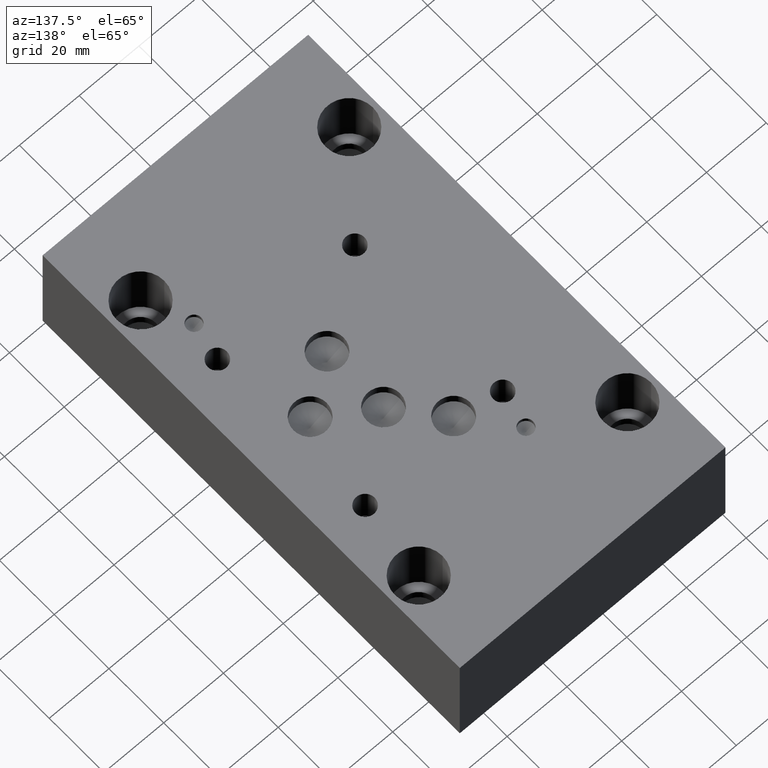
[diagram: clean part render]
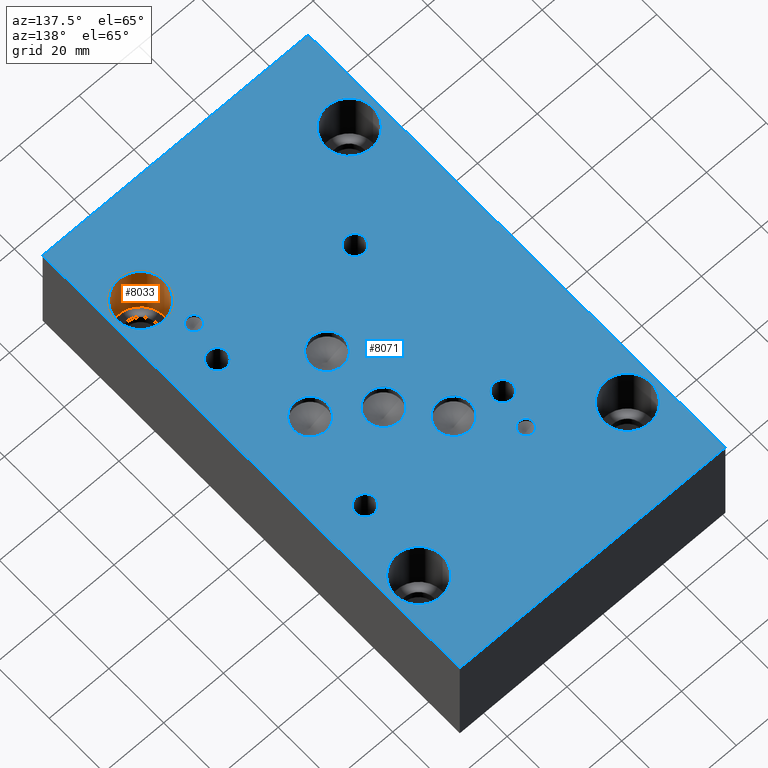
[diagram: same view with the hole feature highlighted: cylindrical wall and planar end face, labeled with their STEP entity ids]
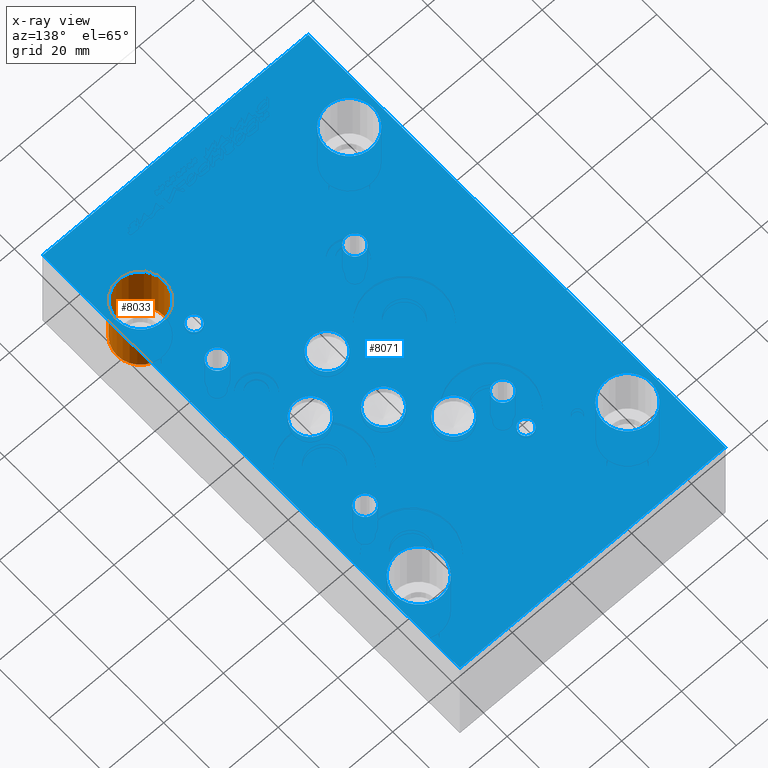
[diagram: x-ray of the same camera — body ghosted, the hole faces saturated]
A machine part, auxiliary view. The highlighted faces form one hole feature of diameter 15.875 mm: the cylindrical wall (entity #8033, orange) and its adjacent planar end face (entity #8071, blue) — they share a circular edge in the B-rep.
The next image is the same camera in x-ray (body ghosted, the hole faces saturated) — the bore reads through the body.
Wall:
#36=CYLINDRICAL_SURFACE('',#8466,7.9375);
#136=CIRCLE('',#8463,7.9375);
#137=CIRCLE('',#8464,7.9375);
#139=CIRCLE('',#8467,7.9375);
#140=CIRCLE('',#8468,7.9375);
#891=FACE_OUTER_BOUND('',#1340,.T.);
#1340=EDGE_LOOP('',(#6847,#6848,#6849,#6850,#6851,#6852));
#2178=LINE('',#13373,#2982);
#2982=VECTOR('',#10100,7.9375);
#3704=VERTEX_POINT('',#13362);
#3705=VERTEX_POINT('',#13363);
#3707=VERTEX_POINT('',#13369);
#3708=VERTEX_POINT('',#13370);
#4782=EDGE_CURVE('',#3704,#3705,#136,.T.);
#4783=EDGE_CURVE('',#3705,#3704,#137,.T.);
#4785=EDGE_CURVE('',#3707,#3708,#139,.T.);
#4786=EDGE_CURVE('',#3708,#3707,#140,.T.);
#4787=EDGE_CURVE('',#3708,#3705,#2178,.T.);
#6847=ORIENTED_EDGE('',*,*,#4785,.F.);
#6848=ORIENTED_EDGE('',*,*,#4786,.F.);
#6849=ORIENTED_EDGE('',*,*,#4787,.T.);
#6850=ORIENTED_EDGE('',*,*,#4782,.F.);
#6851=ORIENTED_EDGE('',*,*,#4783,.F.);
#6852=ORIENTED_EDGE('',*,*,#4787,.F.);
#8033=ADVANCED_FACE('',(#891),#36,.F.);
#8463=AXIS2_PLACEMENT_3D('',#13364,#10088,#10089);
#8464=AXIS2_PLACEMENT_3D('',#13365,#10090,#10091);
#8466=AXIS2_PLACEMENT_3D('',#13368,#10094,#10095);
#8467=AXIS2_PLACEMENT_3D('',#13371,#10096,#10097);
#8468=AXIS2_PLACEMENT_3D('',#13372,#10098,#10099);
#10088=DIRECTION('center_axis',(0.,0.,1.));
#10089=DIRECTION('ref_axis',(1.,0.,0.));
#10090=DIRECTION('center_axis',(0.,0.,1.));
#10091=DIRECTION('ref_axis',(1.,0.,0.));
#10094=DIRECTION('center_axis',(0.,0.,1.));
#10095=DIRECTION('ref_axis',(1.,0.,0.));
#10096=DIRECTION('center_axis',(0.,0.,-1.));
#10097=DIRECTION('ref_axis',(1.,0.,0.));
#10098=DIRECTION('center_axis',(0.,0.,-1.));
#10099=DIRECTION('ref_axis',(1.,0.,0.));
#10100=DIRECTION('',(0.,0.,-1.));
#13362=CARTESIAN_POINT('',(87.3125,25.4,17.4752));
#13363=CARTESIAN_POINT('',(71.4375,25.4,17.4752));
#13364=CARTESIAN_POINT('Origin',(79.375,25.4,17.4752));
#13365=CARTESIAN_POINT('Origin',(79.375,25.4,17.4752));
#13368=CARTESIAN_POINT('Origin',(79.375,25.4,27.7876));
#13369=CARTESIAN_POINT('',(87.3125,25.4,38.1));
#13370=CARTESIAN_POINT('',(71.4375,25.4,38.1));
#13371=CARTESIAN_POINT('Origin',(79.375,25.4,38.1));
#13372=CARTESIAN_POINT('Origin',(79.375,25.4,38.1));
#13373=CARTESIAN_POINT('',(71.4375,25.4,27.7876));
End face:
#125=CIRCLE('',#8445,7.9375);
#126=CIRCLE('',#8446,7.9375);
#132=CIRCLE('',#8456,7.9375);
#133=CIRCLE('',#8457,7.9375);
#139=CIRCLE('',#8467,7.9375);
#140=CIRCLE('',#8468,7.9375);
#146=CIRCLE('',#8478,7.9375);
#147=CIRCLE('',#8479,7.9375);
#150=CIRCLE('',#8485,2.3876);
#151=CIRCLE('',#8486,2.3876);
#154=CIRCLE('',#8491,2.3876);
#155=CIRCLE('',#8492,2.3876);
#158=CIRCLE('',#8497,5.55625);
#159=CIRCLE('',#8498,5.55625);
#162=CIRCLE('',#8503,5.55625);
#163=CIRCLE('',#8504,5.55625);
#166=CIRCLE('',#8509,5.55625);
#167=CIRCLE('',#8510,5.55625);
#170=CIRCLE('',#8515,5.5626);
#171=CIRCLE('',#8516,5.5626);
#177=CIRCLE('',#8525,3.175);
#178=CIRCLE('',#8526,3.175);
#184=CIRCLE('',#8536,3.175);
#185=CIRCLE('',#8537,3.175);
#191=CIRCLE('',#8547,3.175);
#192=CIRCLE('',#8548,3.175);
#198=CIRCLE('',#8558,3.175);
#199=CIRCLE('',#8559,3.175);
#271=FACE_BOUND('',#1384,.T.);
#272=FACE_BOUND('',#1385,.T.);
#273=FACE_BOUND('',#1386,.T.);
#274=FACE_BOUND('',#1387,.T.);
#275=FACE_BOUND('',#1388,.T.);
#276=FACE_BOUND('',#1389,.T.);
#277=FACE_BOUND('',#1390,.T.);
#278=FACE_BOUND('',#1391,.T.);
#279=FACE_BOUND('',#1392,.T.);
#280=FACE_BOUND('',#1393,.T.);
#281=FACE_BOUND('',#1394,.T.);
#282=FACE_BOUND('',#1395,.T.);
#283=FACE_BOUND('',#1396,.T.);
#284=FACE_BOUND('',#1397,.T.);
#929=FACE_OUTER_BOUND('',#1383,.T.);
#1383=EDGE_LOOP('',(#7023,#7024,#7025,#7026));
#1384=EDGE_LOOP('',(#7027,#7028));
#1385=EDGE_LOOP('',(#7029,#7030));
#1386=EDGE_LOOP('',(#7031,#7032));
#1387=EDGE_LOOP('',(#7033,#7034));
#1388=EDGE_LOOP('',(#7035,#7036));
#1389=EDGE_LOOP('',(#7037,#7038));
#1390=EDGE_LOOP('',(#7039,#7040));
#1391=EDGE_LOOP('',(#7041,#7042));
#1392=EDGE_LOOP('',(#7043,#7044));
#1393=EDGE_LOOP('',(#7045,#7046));
#1394=EDGE_LOOP('',(#7047,#7048));
#1395=EDGE_LOOP('',(#7049,#7050));
#1396=EDGE_LOOP('',(#7051,#7052));
#1397=EDGE_LOOP('',(#7053,#7054));
#1762=LINE('',#12189,#2566);
#2208=LINE('',#13568,#3012);
#2211=LINE('',#13574,#3015);
#2214=LINE('',#13578,#3018);
#2566=VECTOR('',#9132,10.);
#3012=VECTOR('',#10316,10.);
#3015=VECTOR('',#10321,10.);
#3018=VECTOR('',#10326,10.);
#3343=VERTEX_POINT('',#12186);
#3344=VERTEX_POINT('',#12188);
#3691=VERTEX_POINT('',#13325);
#3692=VERTEX_POINT('',#13326);
#3699=VERTEX_POINT('',#13347);
#3700=VERTEX_POINT('',#13348);
#3707=VERTEX_POINT('',#13369);
#3708=VERTEX_POINT('',#13370);
#3715=VERTEX_POINT('',#13391);
#3716=VERTEX_POINT('',#13392);
#3720=VERTEX_POINT('',#13406);
#3721=VERTEX_POINT('',#13407);
#3725=VERTEX_POINT('',#13419);
#3726=VERTEX_POINT('',#13420);
#3730=VERTEX_POINT('',#13432);
#3731=VERTEX_POINT('',#13433);
#3735=VERTEX_POINT('',#13445);
#3736=VERTEX_POINT('',#13446);
#3740=VERTEX_POINT('',#13458);
#3741=VERTEX_POINT('',#13459);
#3745=VERTEX_POINT('',#13471);
#3746=VERTEX_POINT('',#13472);
#3753=VERTEX_POINT('',#13491);
#3754=VERTEX_POINT('',#13492);
#3761=VERTEX_POINT('',#13513);
#3762=VERTEX_POINT('',#13514);
#3769=VERTEX_POINT('',#13535);
#3770=VERTEX_POINT('',#13536);
#3777=VERTEX_POINT('',#13557);
#3778=VERTEX_POINT('',#13558);
#3780=VERTEX_POINT('',#13567);
#3782=VERTEX_POINT('',#13573);
#4268=EDGE_CURVE('',#3344,#3343,#1762,.T.);
#4765=EDGE_CURVE('',#3691,#3692,#125,.T.);
#4766=EDGE_CURVE('',#3692,#3691,#126,.T.);
#4775=EDGE_CURVE('',#3699,#3700,#132,.T.);
#4776=EDGE_CURVE('',#3700,#3699,#133,.T.);
#4785=EDGE_CURVE('',#3707,#3708,#139,.T.);
#4786=EDGE_CURVE('',#3708,#3707,#140,.T.);
#4795=EDGE_CURVE('',#3715,#3716,#146,.T.);
#4796=EDGE_CURVE('',#3716,#3715,#147,.T.);
#4802=EDGE_CURVE('',#3720,#3721,#150,.T.);
#4803=EDGE_CURVE('',#3721,#3720,#151,.T.);
#4808=EDGE_CURVE('',#3725,#3726,#154,.T.);
#4809=EDGE_CURVE('',#3726,#3725,#155,.T.);
#4814=EDGE_CURVE('',#3730,#3731,#158,.T.);
#4815=EDGE_CURVE('',#3731,#3730,#159,.T.);
#4820=EDGE_CURVE('',#3735,#3736,#162,.T.);
#4821=EDGE_CURVE('',#3736,#3735,#163,.T.);
#4826=EDGE_CURVE('',#3740,#3741,#166,.T.);
#4827=EDGE_CURVE('',#3741,#3740,#167,.T.);
#4832=EDGE_CURVE('',#3745,#3746,#170,.T.);
#4833=EDGE_CURVE('',#3746,#3745,#171,.T.);
#4841=EDGE_CURVE('',#3753,#3754,#177,.T.);
#4842=EDGE_CURVE('',#3754,#3753,#178,.T.);
#4851=EDGE_CURVE('',#3761,#3762,#184,.T.);
#4852=EDGE_CURVE('',#3762,#3761,#185,.T.);
#4861=EDGE_CURVE('',#3769,#3770,#191,.T.);
#4862=EDGE_CURVE('',#3770,#3769,#192,.T.);
#4871=EDGE_CURVE('',#3777,#3778,#198,.T.);
#4872=EDGE_CURVE('',#3778,#3777,#199,.T.);
#4876=EDGE_CURVE('',#3780,#3344,#2208,.T.);
#4879=EDGE_CURVE('',#3782,#3780,#2211,.T.);
#4882=EDGE_CURVE('',#3343,#3782,#2214,.T.);
#7023=ORIENTED_EDGE('',*,*,#4268,.T.);
#7024=ORIENTED_EDGE('',*,*,#4882,.T.);
#7025=ORIENTED_EDGE('',*,*,#4879,.T.);
#7026=ORIENTED_EDGE('',*,*,#4876,.T.);
#7027=ORIENTED_EDGE('',*,*,#4765,.T.);
#7028=ORIENTED_EDGE('',*,*,#4766,.T.);
#7029=ORIENTED_EDGE('',*,*,#4775,.T.);
#7030=ORIENTED_EDGE('',*,*,#4776,.T.);
#7031=ORIENTED_EDGE('',*,*,#4785,.T.);
#7032=ORIENTED_EDGE('',*,*,#4786,.T.);
#7033=ORIENTED_EDGE('',*,*,#4795,.T.);
#7034=ORIENTED_EDGE('',*,*,#4796,.T.);
#7035=ORIENTED_EDGE('',*,*,#4802,.T.);
#7036=ORIENTED_EDGE('',*,*,#4803,.T.);
#7037=ORIENTED_EDGE('',*,*,#4808,.T.);
#7038=ORIENTED_EDGE('',*,*,#4809,.T.);
#7039=ORIENTED_EDGE('',*,*,#4814,.T.);
#7040=ORIENTED_EDGE('',*,*,#4815,.T.);
#7041=ORIENTED_EDGE('',*,*,#4820,.T.);
#7042=ORIENTED_EDGE('',*,*,#4821,.T.);
#7043=ORIENTED_EDGE('',*,*,#4826,.T.);
#7044=ORIENTED_EDGE('',*,*,#4827,.T.);
#7045=ORIENTED_EDGE('',*,*,#4832,.T.);
#7046=ORIENTED_EDGE('',*,*,#4833,.T.);
#7047=ORIENTED_EDGE('',*,*,#4841,.T.);
#7048=ORIENTED_EDGE('',*,*,#4842,.T.);
#7049=ORIENTED_EDGE('',*,*,#4851,.T.);
#7050=ORIENTED_EDGE('',*,*,#4852,.T.);
#7051=ORIENTED_EDGE('',*,*,#4861,.T.);
#7052=ORIENTED_EDGE('',*,*,#4862,.T.);
#7053=ORIENTED_EDGE('',*,*,#4871,.T.);
#7054=ORIENTED_EDGE('',*,*,#4872,.T.);
#7349=PLANE('',#8565);
#8071=ADVANCED_FACE('',(#929,#271,#272,#273,#274,#275,#276,#277,#278,#279,
#280,#281,#282,#283,#284),#7349,.T.);
#8445=AXIS2_PLACEMENT_3D('',#13327,#10046,#10047);
#8446=AXIS2_PLACEMENT_3D('',#13328,#10048,#10049);
#8456=AXIS2_PLACEMENT_3D('',#13349,#10071,#10072);
#8457=AXIS2_PLACEMENT_3D('',#13350,#10073,#10074);
#8467=AXIS2_PLACEMENT_3D('',#13371,#10096,#10097);
#8468=AXIS2_PLACEMENT_3D('',#13372,#10098,#10099);
#8478=AXIS2_PLACEMENT_3D('',#13393,#10121,#10122);
#8479=AXIS2_PLACEMENT_3D('',#13394,#10123,#10124);
#8485=AXIS2_PLACEMENT_3D('',#13408,#10138,#10139);
#8486=AXIS2_PLACEMENT_3D('',#13409,#10140,#10141);
#8491=AXIS2_PLACEMENT_3D('',#13421,#10152,#10153);
#8492=AXIS2_PLACEMENT_3D('',#13422,#10154,#10155);
#8497=AXIS2_PLACEMENT_3D('',#13434,#10166,#10167);
#8498=AXIS2_PLACEMENT_3D('',#13435,#10168,#10169);
#8503=AXIS2_PLACEMENT_3D('',#13447,#10180,#10181);
#8504=AXIS2_PLACEMENT_3D('',#13448,#10182,#10183);
#8509=AXIS2_PLACEMENT_3D('',#13460,#10194,#10195);
#8510=AXIS2_PLACEMENT_3D('',#13461,#10196,#10197);
#8515=AXIS2_PLACEMENT_3D('',#13473,#10208,#10209);
#8516=AXIS2_PLACEMENT_3D('',#13474,#10210,#10211);
#8525=AXIS2_PLACEMENT_3D('',#13493,#10230,#10231);
#8526=AXIS2_PLACEMENT_3D('',#13494,#10232,#10233);
#8536=AXIS2_PLACEMENT_3D('',#13515,#10255,#10256);
#8537=AXIS2_PLACEMENT_3D('',#13516,#10257,#10258);
#8547=AXIS2_PLACEMENT_3D('',#13537,#10280,#10281);
#8548=AXIS2_PLACEMENT_3D('',#13538,#10282,#10283);
#8558=AXIS2_PLACEMENT_3D('',#13559,#10305,#10306);
#8559=AXIS2_PLACEMENT_3D('',#13560,#10307,#10308);
#8565=AXIS2_PLACEMENT_3D('',#13580,#10329,#10330);
#9132=DIRECTION('',(1.,0.,0.));
#10046=DIRECTION('center_axis',(0.,0.,-1.));
#10047=DIRECTION('ref_axis',(1.,0.,0.));
#10048=DIRECTION('center_axis',(0.,0.,-1.));
#10049=DIRECTION('ref_axis',(1.,0.,0.));
#10071=DIRECTION('center_axis',(0.,0.,-1.));
#10072=DIRECTION('ref_axis',(1.,0.,0.));
#10073=DIRECTION('center_axis',(0.,0.,-1.));
#10074=DIRECTION('ref_axis',(1.,0.,0.));
#10096=DIRECTION('center_axis',(0.,0.,-1.));
#10097=DIRECTION('ref_axis',(1.,0.,0.));
#10098=DIRECTION('center_axis',(0.,0.,-1.));
#10099=DIRECTION('ref_axis',(1.,0.,0.));
#10121=DIRECTION('center_axis',(0.,0.,-1.));
#10122=DIRECTION('ref_axis',(1.,0.,0.));
#10123=DIRECTION('center_axis',(0.,0.,-1.));
#10124=DIRECTION('ref_axis',(1.,0.,0.));
#10138=DIRECTION('center_axis',(0.,0.,-1.));
#10139=DIRECTION('ref_axis',(1.,0.,0.));
#10140=DIRECTION('center_axis',(0.,0.,-1.));
#10141=DIRECTION('ref_axis',(1.,0.,0.));
#10152=DIRECTION('center_axis',(0.,0.,-1.));
#10153=DIRECTION('ref_axis',(1.,0.,0.));
#10154=DIRECTION('center_axis',(0.,0.,-1.));
#10155=DIRECTION('ref_axis',(1.,0.,0.));
#10166=DIRECTION('center_axis',(0.,0.,-1.));
#10167=DIRECTION('ref_axis',(1.,0.,0.));
#10168=DIRECTION('center_axis',(0.,0.,-1.));
#10169=DIRECTION('ref_axis',(1.,0.,0.));
#10180=DIRECTION('center_axis',(0.,0.,-1.));
#10181=DIRECTION('ref_axis',(1.,0.,0.));
#10182=DIRECTION('center_axis',(0.,0.,-1.));
#10183=DIRECTION('ref_axis',(1.,0.,0.));
#10194=DIRECTION('center_axis',(0.,0.,-1.));
#10195=DIRECTION('ref_axis',(1.,0.,0.));
#10196=DIRECTION('center_axis',(0.,0.,-1.));
#10197=DIRECTION('ref_axis',(1.,0.,0.));
#10208=DIRECTION('center_axis',(0.,0.,-1.));
#10209=DIRECTION('ref_axis',(1.,0.,0.));
#10210=DIRECTION('center_axis',(0.,0.,-1.));
#10211=DIRECTION('ref_axis',(1.,0.,0.));
#10230=DIRECTION('center_axis',(0.,0.,-1.));
#10231=DIRECTION('ref_axis',(1.,0.,0.));
#10232=DIRECTION('center_axis',(0.,0.,-1.));
#10233=DIRECTION('ref_axis',(1.,0.,0.));
#10255=DIRECTION('center_axis',(0.,0.,-1.));
#10256=DIRECTION('ref_axis',(1.,0.,0.));
#10257=DIRECTION('center_axis',(0.,0.,-1.));
#10258=DIRECTION('ref_axis',(1.,0.,0.));
#10280=DIRECTION('center_axis',(0.,0.,-1.));
#10281=DIRECTION('ref_axis',(1.,0.,0.));
#10282=DIRECTION('center_axis',(0.,0.,-1.));
#10283=DIRECTION('ref_axis',(1.,0.,0.));
#10305=DIRECTION('center_axis',(0.,0.,-1.));
#10306=DIRECTION('ref_axis',(1.,0.,0.));
#10307=DIRECTION('center_axis',(0.,0.,-1.));
#10308=DIRECTION('ref_axis',(1.,0.,0.));
#10316=DIRECTION('',(0.,-1.,0.));
#10321=DIRECTION('',(-1.,0.,0.));
#10326=DIRECTION('',(0.,1.,0.));
#10329=DIRECTION('center_axis',(0.,0.,1.));
#10330=DIRECTION('ref_axis',(1.,0.,0.));
#12186=CARTESIAN_POINT('',(88.9,0.,38.1));
#12188=CARTESIAN_POINT('',(0.,0.,38.1));
#12189=CARTESIAN_POINT('',(0.,0.,38.1));
#13325=CARTESIAN_POINT('',(17.4625,127.,38.1));
#13326=CARTESIAN_POINT('',(1.5875,127.,38.1));
#13327=CARTESIAN_POINT('Origin',(9.525,127.,38.1));
#13328=CARTESIAN_POINT('Origin',(9.525,127.,38.1));
#13347=CARTESIAN_POINT('',(17.4625,25.4,38.1));
#13348=CARTESIAN_POINT('',(1.5875,25.4,38.1));
#13349=CARTESIAN_POINT('Origin',(9.525,25.4,38.1));
#13350=CARTESIAN_POINT('Origin',(9.525,25.4,38.1));
#13369=CARTESIAN_POINT('',(87.3125,25.4,38.1));
#13370=CARTESIAN_POINT('',(71.4375,25.4,38.1));
#13371=CARTESIAN_POINT('Origin',(79.375,25.4,38.1));
#13372=CARTESIAN_POINT('Origin',(79.375,25.4,38.1));
#13391=CARTESIAN_POINT('',(87.3125,127.,38.1));
#13392=CARTESIAN_POINT('',(71.4375,127.,38.1));
#13393=CARTESIAN_POINT('Origin',(79.375,127.,38.1));
#13394=CARTESIAN_POINT('Origin',(79.375,127.,38.1));
#13406=CARTESIAN_POINT('',(76.2381,38.9001,38.1));
#13407=CARTESIAN_POINT('',(71.4629,38.9001,38.1));
#13408=CARTESIAN_POINT('Origin',(73.8505,38.9001,38.1));
#13409=CARTESIAN_POINT('Origin',(73.8505,38.9001,38.1));
#13419=CARTESIAN_POINT('',(34.9631,115.1001,38.1));
#13420=CARTESIAN_POINT('',(30.1879,115.1001,38.1));
#13421=CARTESIAN_POINT('Origin',(32.5755,115.1001,38.1));
#13422=CARTESIAN_POINT('Origin',(32.5755,115.1001,38.1));
#13432=CARTESIAN_POINT('',(60.35675,87.31758,38.1));
#13433=CARTESIAN_POINT('',(49.24425,87.31758,38.1));
#13434=CARTESIAN_POINT('Origin',(54.8005,87.31758,38.1));
#13435=CARTESIAN_POINT('Origin',(54.8005,87.31758,38.1));
#13445=CARTESIAN_POINT('',(49.25187,100.8126,38.1));
#13446=CARTESIAN_POINT('',(38.13937,100.8126,38.1));
#13447=CARTESIAN_POINT('Origin',(43.69562,100.8126,38.1));
#13448=CARTESIAN_POINT('Origin',(43.69562,100.8126,38.1));
#13458=CARTESIAN_POINT('',(60.36183,66.68262,38.1));
#13459=CARTESIAN_POINT('',(49.24933,66.68262,38.1));
#13460=CARTESIAN_POINT('Origin',(54.80558,66.68262,38.1));
#13461=CARTESIAN_POINT('Origin',(54.80558,66.68262,38.1));
#13471=CARTESIAN_POINT('',(75.4634,77.0001,38.1));
#13472=CARTESIAN_POINT('',(64.3382,77.0001,38.1));
#13473=CARTESIAN_POINT('Origin',(69.9008,77.0001,38.1));
#13474=CARTESIAN_POINT('Origin',(69.9008,77.0001,38.1));
#13491=CARTESIAN_POINT('',(79.4004,49.9999,38.1));
#13492=CARTESIAN_POINT('',(73.0504,49.9999,38.1));
#13493=CARTESIAN_POINT('Origin',(76.2254,49.9999,38.1));
#13494=CARTESIAN_POINT('Origin',(76.2254,49.9999,38.1));
#13513=CARTESIAN_POINT('',(33.3502,103.9876,38.1));
#13514=CARTESIAN_POINT('',(27.0002,103.9876,38.1));
#13515=CARTESIAN_POINT('Origin',(30.1752,103.9876,38.1));
#13516=CARTESIAN_POINT('Origin',(30.1752,103.9876,38.1));
#13535=CARTESIAN_POINT('',(79.4004,103.9749,38.1));
#13536=CARTESIAN_POINT('',(73.0504,103.9749,38.1));
#13537=CARTESIAN_POINT('Origin',(76.2254,103.9749,38.1));
#13538=CARTESIAN_POINT('Origin',(76.2254,103.9749,38.1));
#13557=CARTESIAN_POINT('',(33.3629,49.9999,38.1));
#13558=CARTESIAN_POINT('',(27.0129,49.9999,38.1));
#13559=CARTESIAN_POINT('Origin',(30.1879,49.9999,38.1));
#13560=CARTESIAN_POINT('Origin',(30.1879,49.9999,38.1));
#13567=CARTESIAN_POINT('',(0.,152.4,38.1));
#13568=CARTESIAN_POINT('',(0.,152.4,38.1));
#13573=CARTESIAN_POINT('',(88.9,152.4,38.1));
#13574=CARTESIAN_POINT('',(88.9,152.4,38.1));
#13578=CARTESIAN_POINT('',(88.9,0.,38.1));
#13580=CARTESIAN_POINT('Origin',(44.45,76.2,38.1));